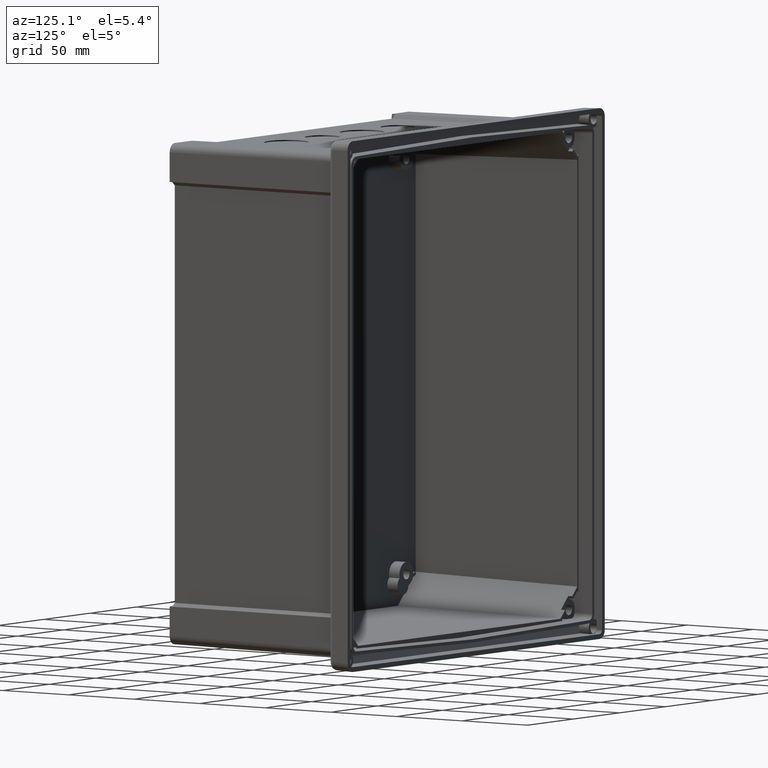
[diagram: clean part render]
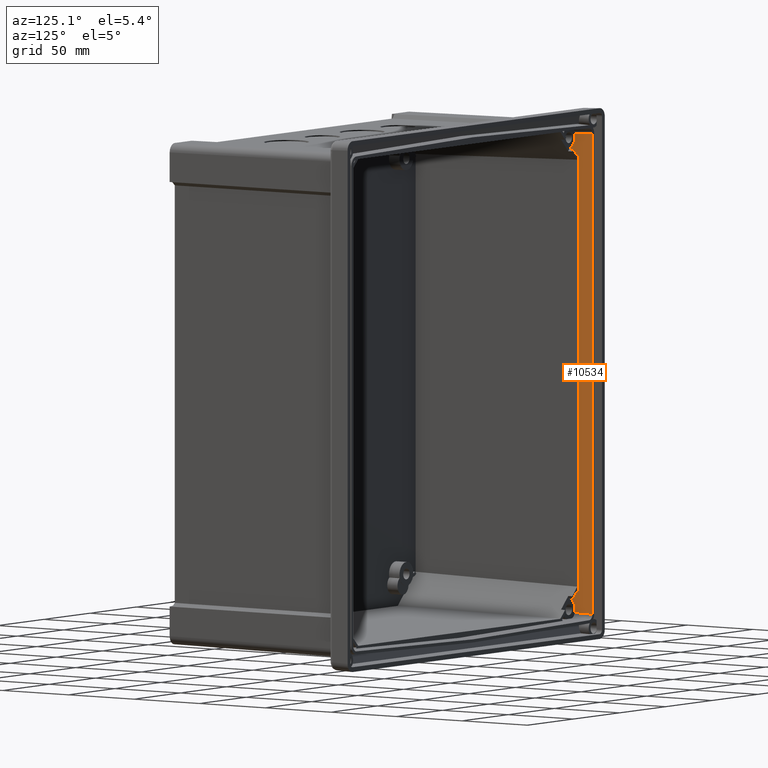
[diagram: same view with one face highlighted and labeled with its STEP entity id]
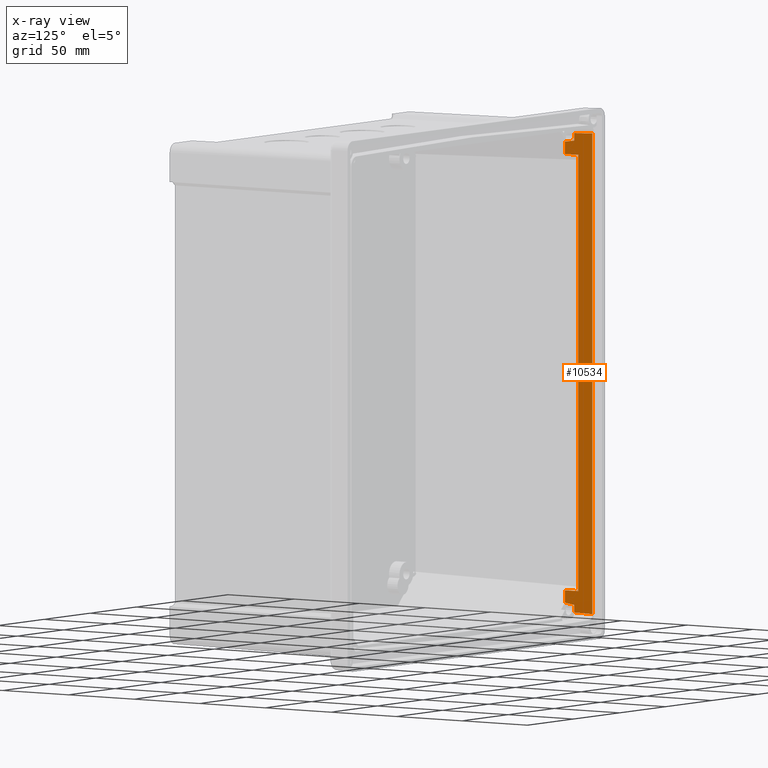
[diagram: x-ray of the same camera — body ghosted, the highlighted face saturated]
A machine part, auxiliary view. The second image highlights one B-rep face of the part: STEP entity #10534.
The next image is the same camera in x-ray: the body ghosted, the highlighted face saturated — about 0% of this face is hidden behind the body in this view.
In plain terms, the highlighted planar face has unit normal (0.9994, 0.0349, 0).
Its self-contained STEP definition (entity closure, byte-faithful):
#3409=DIRECTION('',(0.E0,0.E0,1.E0));
#3410=VECTOR('',#3409,2.733569761657E2);
#3411=CARTESIAN_POINT('',(-1.292853628271E2,-1.284933531883E1,
-1.366784880829E2));
#3412=LINE('',#3411,#3410);
#3413=CARTESIAN_POINT('',(-1.291806005182E2,-1.584933532283E1,
1.454956637423E2));
#3414=CARTESIAN_POINT('',(-1.291552824527E2,-1.657434985674E1,
1.453620462685E2));
#3415=CARTESIAN_POINT('',(-1.291030115504E2,-1.807119265063E1,
1.451084859003E2));
#3416=CARTESIAN_POINT('',(-1.290205961683E2,-2.043126040733E1,
1.447575370507E2));
#3417=CARTESIAN_POINT('',(-1.289614114353E2,-2.212608940990E1,
1.445316820109E2));
#3418=CARTESIAN_POINT('',(-1.289308938050E2,-2.299999999910E1,
1.444207617540E2));
#3420=DIRECTION('',(3.778464437947E-11,-2.636853630701E-10,-1.E0));
#3421=VECTOR('',#3420,4.626046264761E0);
#3422=CARTESIAN_POINT('',(-1.291806005183E2,-1.584933532161E1,
1.501217100071E2));
#3423=LINE('',#3422,#3421);
#3424=DIRECTION('',(3.487899278998E-2,-9.988036076540E-1,-3.427548977363E-2));
#3425=VECTOR('',#3424,1.336532549293E1);
#3426=CARTESIAN_POINT('',(-1.296467696098E2,-2.500000001803E0,
1.505798130843E2));
#3427=LINE('',#3426,#3425);
#3428=DIRECTION('',(0.E0,-1.088695280315E-13,-1.E0));
#3429=VECTOR('',#3428,3.011596261696E2);
#3430=CARTESIAN_POINT('',(-1.296467696098E2,-2.500000001803E0,
1.505798130843E2));
#3431=LINE('',#3430,#3429);
#3432=DIRECTION('',(-3.487899278998E-2,9.988036076540E-1,-3.427548977363E-2));
#3433=VECTOR('',#3432,1.336532549293E1);
#3434=CARTESIAN_POINT('',(-1.291806005183E2,-1.584933532165E1,
-1.501217100080E2));
#3435=LINE('',#3434,#3433);
#3436=DIRECTION('',(3.489926197818E-2,-9.993841037563E-1,-3.668061153889E-3));
#3437=VECTOR('',#3436,1.015692029022E1);
#3438=CARTESIAN_POINT('',(-1.292853628271E2,-1.284933531883E1,
1.366784880829E2));
#3439=LINE('',#3438,#3437);
#3445=DIRECTION('',(-7.515037184862E-12,1.161140832902E-10,1.E0));
#3446=VECTOR('',#3445,7.779529875928E0);
#3447=CARTESIAN_POINT('',(-1.289308938050E2,-2.3E1,1.366412318781E2));
#3448=LINE('',#3447,#3446);
#3696=CARTESIAN_POINT('',(-1.296467696098E2,-2.500000001803E0,
1.505798130843E2));
#3698=CARTESIAN_POINT('',(-1.291806005183E2,-1.584933532161E1,
1.501217100071E2));
#3725=CARTESIAN_POINT('',(-1.296467696098E2,-2.500000001836E0,
-1.505798130853E2));
#4213=DIRECTION('',(6.830726440508E-11,-2.565976702535E-10,1.E0));
#4214=VECTOR('',#4213,4.626046266080E0);
#4215=CARTESIAN_POINT('',(-1.291806005183E2,-1.584933532165E1,
-1.501217100080E2));
#4216=LINE('',#4215,#4214);
#4277=DIRECTION('',(-3.489926197818E-2,9.993841037563E-1,-3.668061153889E-3));
#4278=VECTOR('',#4277,1.015692029022E1);
#4279=CARTESIAN_POINT('',(-1.289308938050E2,-2.3E1,-1.366412318781E2));
#4280=LINE('',#4279,#4278);
#4289=DIRECTION('',(-1.904881083307E-11,-1.161140832954E-10,1.E0));
#4290=VECTOR('',#4289,7.779529875580E0);
#4291=CARTESIAN_POINT('',(-1.289308938048E2,-2.299999999910E1,
-1.444207617537E2));
#4292=LINE('',#4291,#4290);
#4306=CARTESIAN_POINT('',(-1.291806005180E2,-1.584933532283E1,
-1.454956637419E2));
#4307=CARTESIAN_POINT('',(-1.291552466788E2,-1.657537428399E1,
-1.453618574701E2));
#4308=CARTESIAN_POINT('',(-1.291029278043E2,-1.807359082637E1,
-1.451080564566E2));
#4309=CARTESIAN_POINT('',(-1.290204945568E2,-2.043417018097E1,
-1.447571081632E2));
#4310=CARTESIAN_POINT('',(-1.289613676881E2,-2.212734215961E1,
-1.445315230065E2));
#4311=CARTESIAN_POINT('',(-1.289308938048E2,-2.299999999910E1,
-1.444207617537E2));
#5177=VERTEX_POINT('',#3696);
#5180=VERTEX_POINT('',#3698);
#5191=VERTEX_POINT('',#3725);
#5193=CARTESIAN_POINT('',(-1.291806005183E2,-1.584933532165E1,
-1.501217100080E2));
#5194=VERTEX_POINT('',#5193);
#5530=CARTESIAN_POINT('',(-1.291806005182E2,-1.584933532283E1,
1.454956637423E2));
#5531=VERTEX_POINT('',#5530);
#5561=CARTESIAN_POINT('',(-1.289308938045E2,-2.299999999729E1,
-1.444207617181E2));
#5563=VERTEX_POINT('',#5561);
#5564=VERTEX_POINT('',#4306);
#5574=CARTESIAN_POINT('',(-1.289308938050E2,-2.3E1,-1.366412318781E2));
#5575=VERTEX_POINT('',#5574);
#5576=CARTESIAN_POINT('',(-1.292853628271E2,-1.284933531883E1,
-1.366784880829E2));
#5577=VERTEX_POINT('',#5576);
#5578=CARTESIAN_POINT('',(-1.292853628271E2,-1.284933531883E1,
1.366784880829E2));
#5579=CARTESIAN_POINT('',(-1.289308938050E2,-2.3E1,1.366412318781E2));
#5580=VERTEX_POINT('',#5578);
#5581=VERTEX_POINT('',#5579);
#5582=CARTESIAN_POINT('',(-1.289308938050E2,-2.299999999910E1,
1.444207617540E2));
#5583=VERTEX_POINT('',#5582);
#10505=CARTESIAN_POINT('',(-1.292888316925E2,-1.275E1,0.E0));
#10506=DIRECTION('',(9.993908270184E-1,3.489949672291E-2,0.E0));
#10507=DIRECTION('',(-3.489949672291E-2,9.993908270184E-1,0.E0));
#10508=AXIS2_PLACEMENT_3D('',#10505,#10506,#10507);
#10509=PLANE('',#10508);
#10510=ORIENTED_EDGE('',*,*,#6412,.T.);
#10512=ORIENTED_EDGE('',*,*,#10511,.T.);
#10514=ORIENTED_EDGE('',*,*,#10513,.T.);
#10516=ORIENTED_EDGE('',*,*,#10515,.F.);
#10518=ORIENTED_EDGE('',*,*,#10517,.F.);
#10520=ORIENTED_EDGE('',*,*,#10519,.F.);
#10521=ORIENTED_EDGE('',*,*,#6662,.T.);
#10523=ORIENTED_EDGE('',*,*,#10522,.F.);
#10525=ORIENTED_EDGE('',*,*,#10524,.T.);
#10527=ORIENTED_EDGE('',*,*,#10526,.T.);
#10529=ORIENTED_EDGE('',*,*,#10528,.T.);
#10531=ORIENTED_EDGE('',*,*,#10530,.T.);
#10532=EDGE_LOOP('',(#10510,#10512,#10514,#10516,#10518,#10520,#10521,#10523,
#10525,#10527,#10529,#10531));
#10533=FACE_OUTER_BOUND('',#10532,.F.);
#10534=ADVANCED_FACE('',(#10533),#10509,.T.);
#3419=B_SPLINE_CURVE_WITH_KNOTS('',3,(#3413,#3414,#3415,#3416,#3417,#3418),
.UNSPECIFIED.,.F.,.F.,(4,1,1,4),(0.E0,3.333333333333E-1,6.666666666667E-1,1.E0),
.UNSPECIFIED.);
#4312=B_SPLINE_CURVE_WITH_KNOTS('',3,(#4306,#4307,#4308,#4309,#4310,#4311),
.UNSPECIFIED.,.F.,.F.,(4,1,1,4),(0.E0,3.333333333333E-1,6.666666666667E-1,1.E0),
.UNSPECIFIED.);
#6412=EDGE_CURVE('',#5577,#5580,#3412,.T.);
#6662=EDGE_CURVE('',#5177,#5191,#3431,.T.);
#10511=EDGE_CURVE('',#5580,#5581,#3439,.T.);
#10513=EDGE_CURVE('',#5581,#5583,#3448,.T.);
#10515=EDGE_CURVE('',#5531,#5583,#3419,.T.);
#10517=EDGE_CURVE('',#5180,#5531,#3423,.T.);
#10519=EDGE_CURVE('',#5177,#5180,#3427,.T.);
#10522=EDGE_CURVE('',#5194,#5191,#3435,.T.);
#10524=EDGE_CURVE('',#5194,#5564,#4216,.T.);
#10526=EDGE_CURVE('',#5564,#5563,#4312,.T.);
#10528=EDGE_CURVE('',#5563,#5575,#4292,.T.);
#10530=EDGE_CURVE('',#5575,#5577,#4280,.T.);